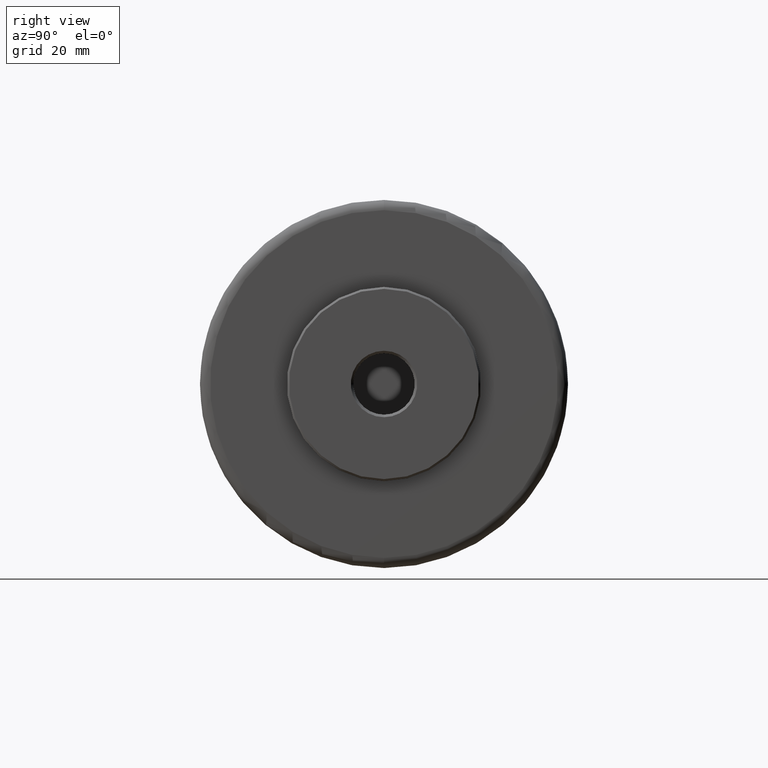
[diagram: clean part render]
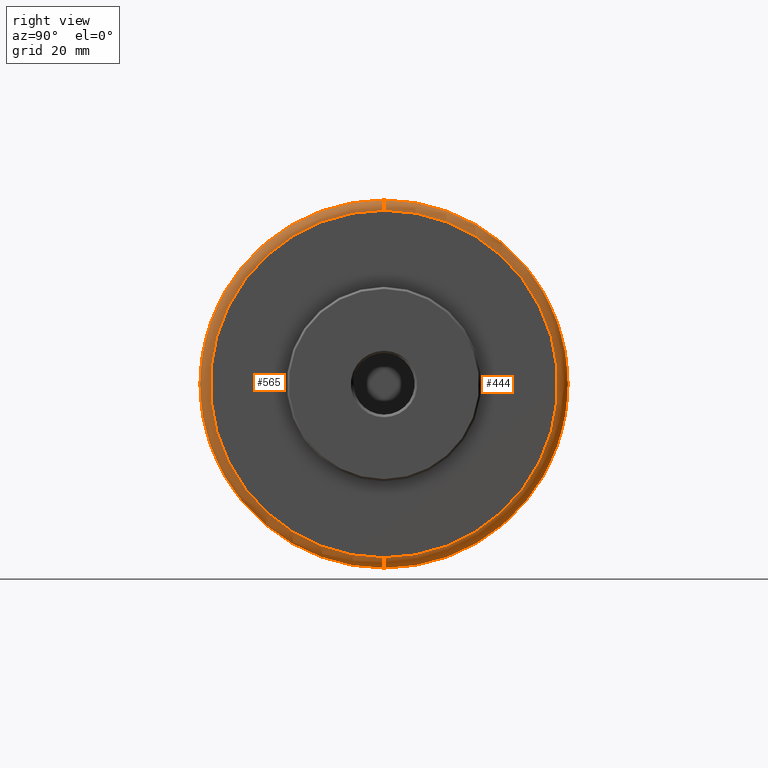
[diagram: same view with one multi-face feature highlighted, each face labeled with its STEP entity id]
A machine part, right view. The highlighted faces form ONE feature: a constant-radius fillet chain: 2 tangent blend faces with common blend radius 2 mm. The faces share edges in the B-rep.
Their STEP definitions:
[1] entity #444 (Torus):
#23 = AXIS2_PLACEMENT_3D ( 'NONE', #817, #176, #924 ) ;
#34 = AXIS2_PLACEMENT_3D ( 'NONE', #392, #1128, #491 ) ;
#95 = CARTESIAN_POINT ( 'NONE',  ( 94.50000000000000000, 4.408728476930472400E-015, -36.00000000000001400 ) ) ;
#164 = DIRECTION ( 'NONE',  ( 1.000000000000000000, -0.0000000000000000000, -0.0000000000000000000 ) ) ;
#170 = AXIS2_PLACEMENT_3D ( 'NONE', #802, #164, #911 ) ;
#176 = DIRECTION ( 'NONE',  ( 0.0000000000000000000, 1.000000000000000000, 1.224646799147353200E-016 ) ) ;
#276 = FACE_OUTER_BOUND ( 'NONE', #1272, .T. ) ;
#283 = ORIENTED_EDGE ( 'NONE', *, *, #1091, .T. ) ;
#286 = CARTESIAN_POINT ( 'NONE',  ( 96.50000000000000000, 4.286263797015737300E-015, -34.00000000000000700 ) ) ;
#288 = VERTEX_POINT ( 'NONE', #95 ) ;
#316 = ORIENTED_EDGE ( 'NONE', *, *, #1234, .F. ) ;
#324 = CIRCLE ( 'NONE', #23, 2.000000000000001800 ) ;
#392 = CARTESIAN_POINT ( 'NONE',  ( 94.50000000000000000, 0.0000000000000000000, 0.0000000000000000000 ) ) ;
#444 = ADVANCED_FACE ( 'NONE', ( #276 ), #1361, .T. ) ;
#491 = DIRECTION ( 'NONE',  ( 0.0000000000000000000, 0.0000000000000000000, 1.000000000000000000 ) ) ;
#516 = CARTESIAN_POINT ( 'NONE',  ( 94.50000000000000000, 0.0000000000000000000, 34.00000000000000700 ) ) ;
#548 = EDGE_CURVE ( 'NONE', #904, #850, #1250, .T. ) ;
#623 = DIRECTION ( 'NONE',  ( 0.0000000000000000000, 0.0000000000000000000, -1.000000000000000000 ) ) ;
#646 = CIRCLE ( 'NONE', #170, 34.00000000000000700 ) ;
#699 = DIRECTION ( 'NONE',  ( 0.0000000000000000000, 0.0000000000000000000, 1.000000000000000000 ) ) ;
#705 = AXIS2_PLACEMENT_3D ( 'NONE', #516, #1264, #623 ) ;
#755 = CARTESIAN_POINT ( 'NONE',  ( 94.50000000000000000, 0.0000000000000000000, 36.00000000000001400 ) ) ;
#802 = CARTESIAN_POINT ( 'NONE',  ( 96.50000000000000000, 0.0000000000000000000, 0.0000000000000000000 ) ) ;
#817 = CARTESIAN_POINT ( 'NONE',  ( 94.50000000000000000, 4.163799117101001300E-015, -34.00000000000000700 ) ) ;
#819 = CARTESIAN_POINT ( 'NONE',  ( 96.50000000000000000, 0.0000000000000000000, 34.00000000000000700 ) ) ;
#850 = VERTEX_POINT ( 'NONE', #755 ) ;
#904 = VERTEX_POINT ( 'NONE', #819 ) ;
#911 = DIRECTION ( 'NONE',  ( 0.0000000000000000000, 0.0000000000000000000, 1.000000000000000000 ) ) ;
#916 = VERTEX_POINT ( 'NONE', #286 ) ;
#924 = DIRECTION ( 'NONE',  ( 0.0000000000000000000, -1.224646799147353500E-016, 1.000000000000000000 ) ) ;
#958 = CIRCLE ( 'NONE', #34, 36.00000000000001400 ) ;
#962 = ORIENTED_EDGE ( 'NONE', *, *, #1052, .F. ) ;
#1052 = EDGE_CURVE ( 'NONE', #916, #904, #646, .T. ) ;
#1091 = EDGE_CURVE ( 'NONE', #916, #288, #324, .T. ) ;
#1128 = DIRECTION ( 'NONE',  ( -1.000000000000000000, 0.0000000000000000000, 0.0000000000000000000 ) ) ;
#1183 = CARTESIAN_POINT ( 'NONE',  ( 94.50000000000000000, 0.0000000000000000000, 0.0000000000000000000 ) ) ;
#1200 = ORIENTED_EDGE ( 'NONE', *, *, #548, .F. ) ;
#1234 = EDGE_CURVE ( 'NONE', #850, #288, #958, .T. ) ;
#1250 = CIRCLE ( 'NONE', #705, 2.000000000000001800 ) ;
#1264 = DIRECTION ( 'NONE',  ( 0.0000000000000000000, -1.000000000000000000, 0.0000000000000000000 ) ) ;
#1272 = EDGE_LOOP ( 'NONE', ( #962, #283, #316, #1200 ) ) ;
#1340 = AXIS2_PLACEMENT_3D ( 'NONE', #1183, #1342, #699 ) ;
#1342 = DIRECTION ( 'NONE',  ( -1.000000000000000000, 0.0000000000000000000, 0.0000000000000000000 ) ) ;
#1361 = TOROIDAL_SURFACE ( 'NONE', #1340, 34.00000000000000700, 2.000000000000000000 ) ;
[2] entity #565 (Torus):
#1 = CIRCLE ( 'NONE', #363, 36.00000000000001400 ) ;
#23 = AXIS2_PLACEMENT_3D ( 'NONE', #817, #176, #924 ) ;
#32 = ORIENTED_EDGE ( 'NONE', *, *, #548, .T. ) ;
#88 = DIRECTION ( 'NONE',  ( -1.000000000000000000, 0.0000000000000000000, 0.0000000000000000000 ) ) ;
#95 = CARTESIAN_POINT ( 'NONE',  ( 94.50000000000000000, 4.408728476930472400E-015, -36.00000000000001400 ) ) ;
#176 = DIRECTION ( 'NONE',  ( 0.0000000000000000000, 1.000000000000000000, 1.224646799147353200E-016 ) ) ;
#214 = ORIENTED_EDGE ( 'NONE', *, *, #1091, .F. ) ;
#280 = CIRCLE ( 'NONE', #885, 34.00000000000000700 ) ;
#286 = CARTESIAN_POINT ( 'NONE',  ( 96.50000000000000000, 4.286263797015737300E-015, -34.00000000000000700 ) ) ;
#288 = VERTEX_POINT ( 'NONE', #95 ) ;
#302 = EDGE_CURVE ( 'NONE', #904, #916, #280, .T. ) ;
#324 = CIRCLE ( 'NONE', #23, 2.000000000000001800 ) ;
#363 = AXIS2_PLACEMENT_3D ( 'NONE', #1142, #508, #1253 ) ;
#405 = FACE_OUTER_BOUND ( 'NONE', #728, .T. ) ;
#414 = DIRECTION ( 'NONE',  ( 0.0000000000000000000, 0.0000000000000000000, 1.000000000000000000 ) ) ;
#508 = DIRECTION ( 'NONE',  ( -1.000000000000000000, 0.0000000000000000000, 0.0000000000000000000 ) ) ;
#516 = CARTESIAN_POINT ( 'NONE',  ( 94.50000000000000000, 0.0000000000000000000, 34.00000000000000700 ) ) ;
#526 = DIRECTION ( 'NONE',  ( 1.000000000000000000, -0.0000000000000000000, -0.0000000000000000000 ) ) ;
#548 = EDGE_CURVE ( 'NONE', #904, #850, #1250, .T. ) ;
#565 = ADVANCED_FACE ( 'NONE', ( #405 ), #1216, .T. ) ;
#623 = DIRECTION ( 'NONE',  ( 0.0000000000000000000, 0.0000000000000000000, -1.000000000000000000 ) ) ;
#705 = AXIS2_PLACEMENT_3D ( 'NONE', #516, #1264, #623 ) ;
#728 = EDGE_LOOP ( 'NONE', ( #214, #793, #32, #1165 ) ) ;
#755 = CARTESIAN_POINT ( 'NONE',  ( 94.50000000000000000, 0.0000000000000000000, 36.00000000000001400 ) ) ;
#793 = ORIENTED_EDGE ( 'NONE', *, *, #302, .F. ) ;
#817 = CARTESIAN_POINT ( 'NONE',  ( 94.50000000000000000, 4.163799117101001300E-015, -34.00000000000000700 ) ) ;
#819 = CARTESIAN_POINT ( 'NONE',  ( 96.50000000000000000, 0.0000000000000000000, 34.00000000000000700 ) ) ;
#850 = VERTEX_POINT ( 'NONE', #755 ) ;
#885 = AXIS2_PLACEMENT_3D ( 'NONE', #1166, #526, #1274 ) ;
#904 = VERTEX_POINT ( 'NONE', #819 ) ;
#916 = VERTEX_POINT ( 'NONE', #286 ) ;
#924 = DIRECTION ( 'NONE',  ( 0.0000000000000000000, -1.224646799147353500E-016, 1.000000000000000000 ) ) ;
#944 = CARTESIAN_POINT ( 'NONE',  ( 94.50000000000000000, 0.0000000000000000000, 0.0000000000000000000 ) ) ;
#1091 = EDGE_CURVE ( 'NONE', #916, #288, #324, .T. ) ;
#1130 = EDGE_CURVE ( 'NONE', #288, #850, #1, .T. ) ;
#1142 = CARTESIAN_POINT ( 'NONE',  ( 94.50000000000000000, 0.0000000000000000000, 0.0000000000000000000 ) ) ;
#1165 = ORIENTED_EDGE ( 'NONE', *, *, #1130, .F. ) ;
#1166 = CARTESIAN_POINT ( 'NONE',  ( 96.50000000000000000, 0.0000000000000000000, 0.0000000000000000000 ) ) ;
#1216 = TOROIDAL_SURFACE ( 'NONE', #1289, 34.00000000000000700, 2.000000000000000000 ) ;
#1250 = CIRCLE ( 'NONE', #705, 2.000000000000001800 ) ;
#1253 = DIRECTION ( 'NONE',  ( 0.0000000000000000000, 0.0000000000000000000, 1.000000000000000000 ) ) ;
#1264 = DIRECTION ( 'NONE',  ( 0.0000000000000000000, -1.000000000000000000, 0.0000000000000000000 ) ) ;
#1274 = DIRECTION ( 'NONE',  ( 0.0000000000000000000, 0.0000000000000000000, 1.000000000000000000 ) ) ;
#1289 = AXIS2_PLACEMENT_3D ( 'NONE', #944, #88, #414 ) ;